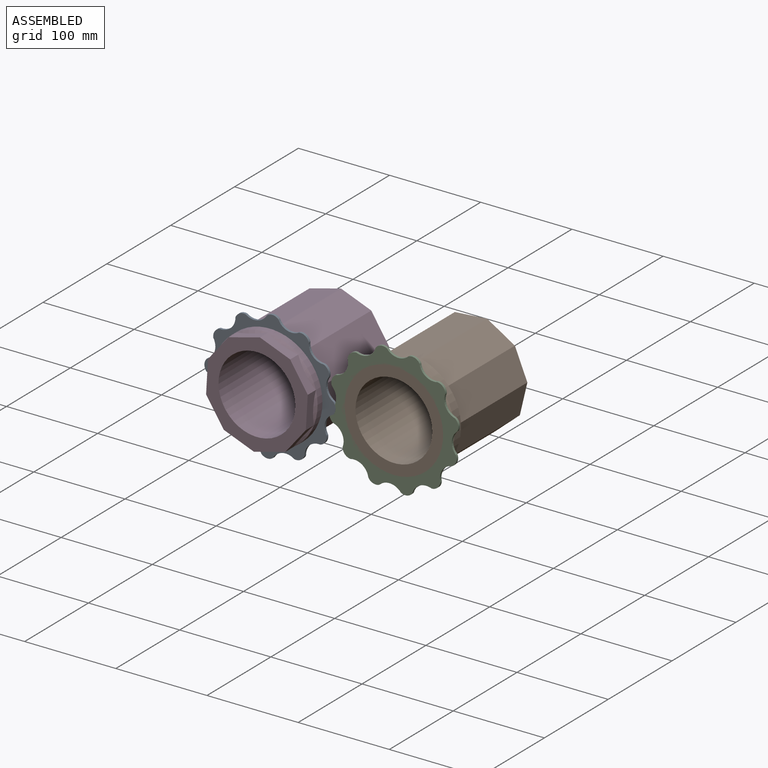
[diagram: assembled view]
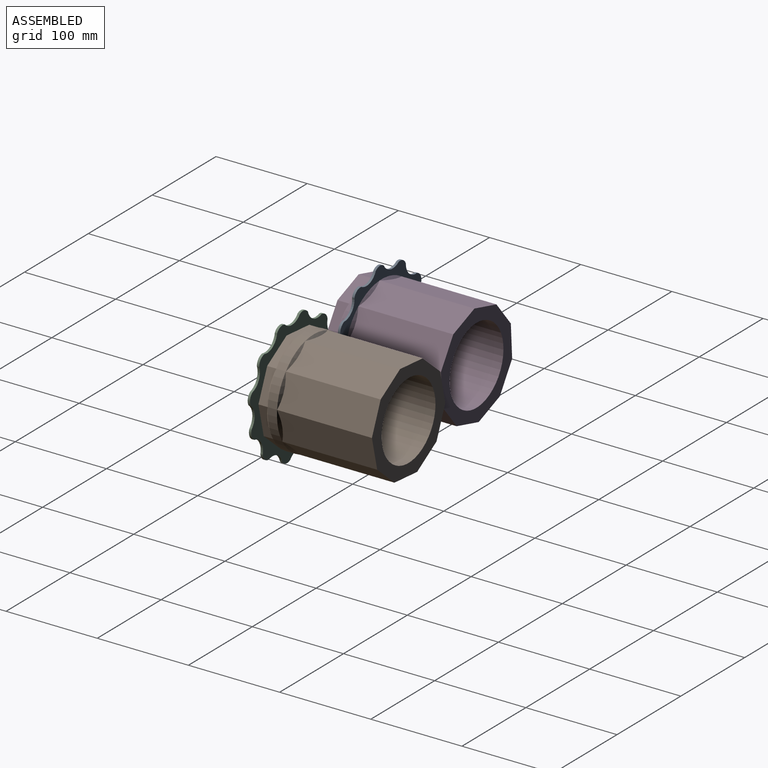
[diagram: assembled view, second angle]
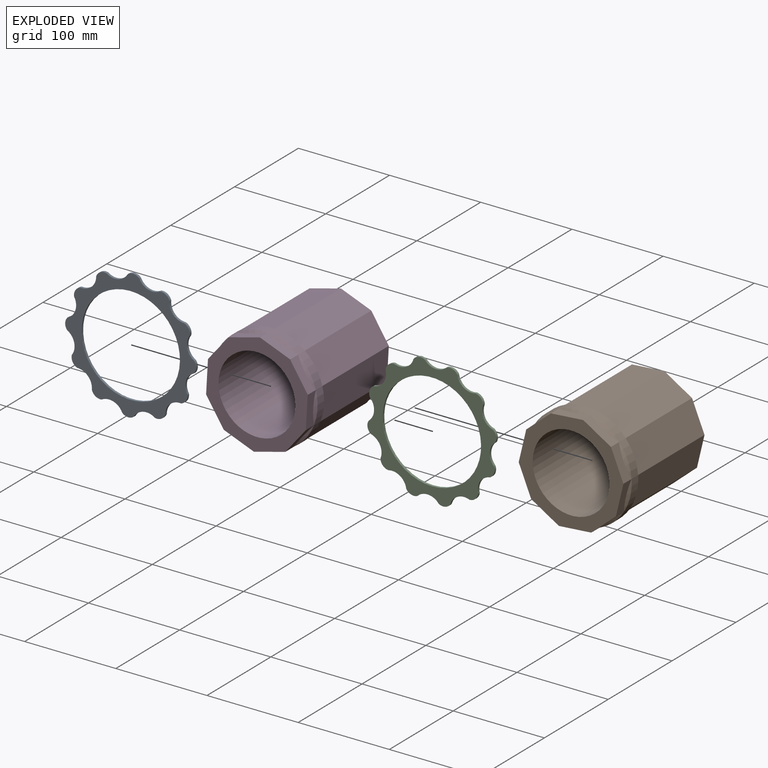
[diagram: exploded view]
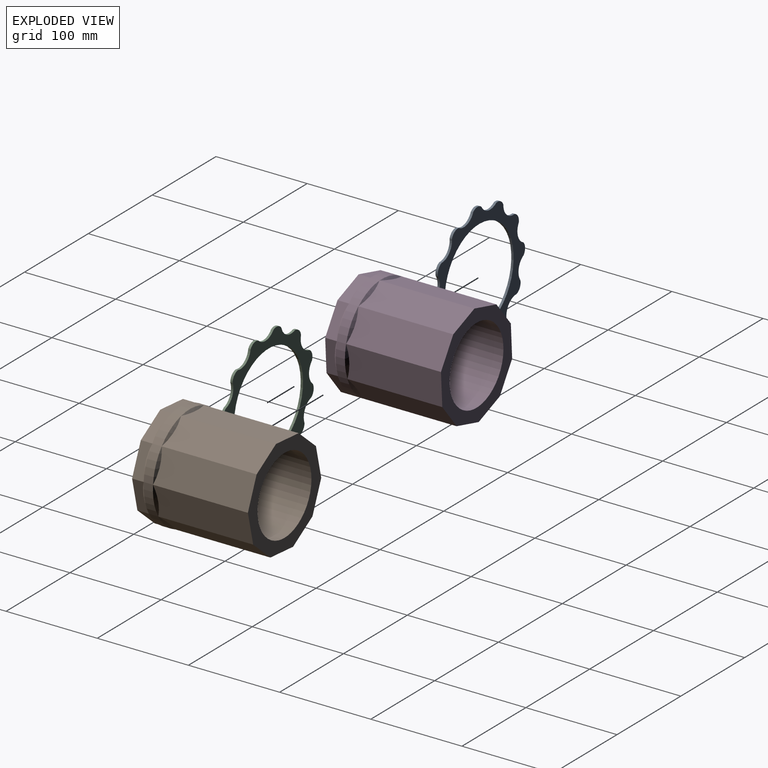
[diagram: exploded view, second angle]
ASSEMBLY  parts=4 mates=2
PART A: 27 faces, bbox 139.7x2.5x139.7 mm
  f0: cylinder r=9.59mm len=8.98mm, axis (0,1,0), area 35.3mm2, adj f1,f23,f25,f26
  f1: cylinder r=15.88mm len=20.56mm, axis (0,1,0), area 68.1mm2, adj f0,f2,f25,f26
  f2: cylinder r=9.59mm len=12.27mm, axis (0,1,0), area 35.3mm2, adj f1,f3,f25,f26
  f3: cylinder r=15.88mm len=23.74mm, axis (0,1,0), area 68.1mm2, adj f2,f4,f25,f26
  f4: cylinder r=9.59mm len=12.27mm, axis (0,1,0), area 35.3mm2, adj f3,f5,f25,f26
  f5: cylinder r=15.88mm len=20.56mm, axis (0,1,0), area 68.1mm2, adj f4,f6,f25,f26
  f6: cylinder r=9.59mm len=8.98mm, axis (0,1,0), area 35.3mm2, adj f5,f7,f25,f26
  f7: cylinder r=15.88mm len=20.56mm, axis (0,1,0), area 68.1mm2, adj f6,f8,f25,f26
  f8: cylinder r=9.59mm len=12.27mm, axis (0,1,0), area 35.3mm2, adj f7,f9,f25,f26
  f9: cylinder r=15.88mm len=23.74mm, axis (0,1,0), area 68.1mm2, adj f8,f10,f25,f26
  f10: cylinder r=9.59mm len=12.27mm, axis (0,1,0), area 35.3mm2, adj f9,f11,f25,f26
  f11: cylinder r=15.88mm len=20.56mm, axis (0,1,0), area 68.1mm2, adj f10,f12,f25,f26
  f12: cylinder r=9.59mm len=8.98mm, axis (0,1,0), area 35.3mm2, adj f11,f13,f25,f26
  f13: cylinder r=15.88mm len=20.56mm, axis (0,1,0), area 68.1mm2, adj f12,f14,f25,f26
  f14: cylinder r=9.59mm len=12.27mm, axis (0,1,0), area 35.3mm2, adj f13,f15,f25,f26
  f15: cylinder r=15.88mm len=23.74mm, axis (0,1,0), area 68.1mm2, adj f14,f16,f25,f26
  f16: cylinder r=9.59mm len=12.27mm, axis (0,1,0), area 35.3mm2, adj f15,f17,f25,f26
  f17: cylinder r=15.88mm len=20.56mm, axis (0,1,0), area 68.1mm2, adj f16,f18,f25,f26
  f18: cylinder r=9.59mm len=8.98mm, axis (0,1,0), area 35.3mm2, adj f17,f19,f25,f26
  f19: cylinder r=15.88mm len=20.56mm, axis (0,1,0), area 68.1mm2, adj f18,f20,f25,f26
  f20: cylinder r=9.59mm len=12.27mm, axis (0,1,0), area 35.3mm2, adj f19,f21,f25,f26
  f21: cylinder r=15.88mm len=23.74mm, axis (0,1,0), area 68.1mm2, adj f20,f22,f25,f26
  f22: cylinder r=9.59mm len=12.27mm, axis (0,1,0), area 35.3mm2, adj f21,f23,f25,f26
  f23: cylinder r=15.88mm len=20.56mm, axis (0,1,0), area 68.1mm2, adj f0,f22,f25,f26
  f24: cylinder r=53.98mm len=107.95mm, axis (0,1,0), area 861.4mm2, adj f25,f26
  f25: plane 139.68x139.68mm, normal (0,-1,0), area 5151.2mm2, adj f0,f1,f2,f3,f4,f5,f6,f7
  f26: plane 139.68x139.68mm, normal (0,1,0), area 5151.2mm2, adj f0,f1,f2,f3,f4,f5,f6,f7
PART B: 44 faces, bbox 115.2x115.2x127 mm
  f0: cone r=44.92mm half-angle=45deg, axis (0,0,-1), area 95.2mm2, adj f20,f31
  f1: cone r=44.92mm half-angle=45deg, axis (0,0,-1), area 95.2mm2, adj f20,f32
  f2: cone r=44.92mm half-angle=45deg, axis (0,0,-1), area 95.2mm2, adj f20,f33
  f3: cone r=44.92mm half-angle=45deg, axis (0,0,-1), area 95.2mm2, adj f20,f34
  f4: cone r=44.92mm half-angle=45deg, axis (0,0,-1), area 95.2mm2, adj f20,f35
  f5: cone r=44.92mm half-angle=45deg, axis (0,0,-1), area 95.2mm2, adj f20,f36
  f6: cone r=44.92mm half-angle=45deg, axis (0,0,-1), area 95.2mm2, adj f20,f37
  f7: cone r=44.92mm half-angle=45deg, axis (0,0,-1), area 95.2mm2, adj f20,f38
  f8: cone r=44.92mm half-angle=45deg, axis (0,0,-1), area 95.2mm2, adj f20,f39
  f9: cone r=44.92mm half-angle=45deg, axis (0,0,-1), area 95.2mm2, adj f20,f40
  f10: cone r=57.62mm half-angle=45deg, axis (0,0,1), area 95.2mm2, adj f20,f30
  f11: cone r=57.62mm half-angle=45deg, axis (0,0,1), area 95.2mm2, adj f20,f29
  f12: cone r=57.62mm half-angle=45deg, axis (0,0,1), area 95.2mm2, adj f20,f28
  f13: cone r=57.62mm half-angle=45deg, axis (0,0,1), area 95.2mm2, adj f20,f27
  f14: cone r=57.62mm half-angle=45deg, axis (0,0,1), area 95.2mm2, adj f20,f26
  f15: cone r=57.62mm half-angle=45deg, axis (0,0,1), area 95.2mm2, adj f20,f25
  f16: cone r=57.62mm half-angle=45deg, axis (0,0,1), area 95.2mm2, adj f20,f24
  f17: cone r=57.62mm half-angle=45deg, axis (0,0,1), area 95.2mm2, adj f20,f23
  f18: cone r=57.62mm half-angle=45deg, axis (0,0,1), area 95.2mm2, adj f20,f22
  f19: cone r=57.62mm half-angle=45deg, axis (0,0,1), area 95.2mm2, adj f20,f21
  f20: cylinder r=57.62mm len=115.24mm, axis (0,0,-1), area 3708.9mm2, adj f0,f1,f2,f3,f4,f5,f6,f7
  f21: plane 26.83x23.41mm, normal (-0.66,-0.75,0), area 385.7mm2, adj f19,f22,f30,f42
  f22: plane 34.71x12.7mm, normal (-0.97,-0.22,0), area 385.7mm2, adj f18,f21,f23,f42
  f23: plane 32.76x13.98mm, normal (-0.92,0.39,0), area 385.7mm2, adj f17,f22,f24,f42
  f24: plane 30.56x18.28mm, normal (-0.51,0.86,0), area 385.7mm2, adj f16,f23,f25,f42
  f25: plane 35.47x12.7mm, normal (0.09,1,0), area 385.7mm2, adj f15,f24,f26,f42
  f26: plane 26.83x23.41mm, normal (0.66,0.75,0), area 385.7mm2, adj f14,f25,f27,f42
  f27: plane 34.71x12.7mm, normal (0.97,0.22,0), area 385.7mm2, adj f13,f26,f28,f42
  f28: plane 32.76x13.98mm, normal (0.92,-0.39,0), area 385.7mm2, adj f12,f27,f29,f42
  f29: plane 30.56x18.28mm, normal (0.51,-0.86,0), area 385.7mm2, adj f11,f28,f30,f42
  f30: plane 35.47x12.7mm, normal (-0.09,-1,0), area 385.7mm2, adj f10,f21,f29,f42
  f31: plane 104.06x35.47mm, normal (-0.09,-1,0), area 3639mm2, adj f0,f32,f40,f41
  f32: plane 104.06x30.56mm, normal (0.51,-0.86,0), area 3639mm2, adj f1,f31,f33,f41
  f33: plane 104.06x32.76mm, normal (0.92,-0.39,0), area 3639mm2, adj f2,f32,f34,f41
  f34: plane 104.06x34.71mm, normal (0.97,0.22,0), area 3639mm2, adj f3,f33,f35,f41
  f35: plane 104.06x26.83mm, normal (0.66,0.75,0), area 3639mm2, adj f4,f34,f36,f41
  f36: plane 104.06x35.47mm, normal (0.09,1,0), area 3639mm2, adj f5,f35,f37,f41
  f37: plane 104.06x30.56mm, normal (-0.51,0.86,0), area 3639mm2, adj f6,f36,f38,f41
  f38: plane 104.06x32.76mm, normal (-0.92,0.39,0), area 3639mm2, adj f7,f37,f39,f41
  f39: plane 104.06x34.71mm, normal (-0.97,-0.22,0), area 3639mm2, adj f8,f38,f40,f41
  f40: plane 104.06x26.83mm, normal (-0.66,-0.75,0), area 3639mm2, adj f9,f31,f39,f41
  f41: plane 114.79x112.34mm, normal (0,0,1), area 4178.5mm2, adj f31,f32,f33,f34,f35,f36,f37,f38
  f42: plane 114.79x112.34mm, normal (0,0,-1), area 4178.5mm2, adj f21,f22,f23,f24,f25,f26,f27,f28
  f43: cylinder r=42.14mm len=127mm, axis (0,0,-1), area 33628.3mm2, adj f41,f42
PART C: same geometry as A
PART D: same geometry as B
PLACE A rot(axis=(0,1,0),137.4deg) t=(-135.27,37.18,-6.95)mm
PLACE B rot(axis=(-1,0,0),90deg) t=(0.58,34.82,-4.25)mm fixed
PLACE C rot(axis=(0.29,0,0.96),180deg) t=(0.58,34.82,-4.25)mm
PLACE D rot(axis=(-0.99,-0.08,-0.08),90.4deg) t=(-135.27,14.24,-6.95)mm fixed
MATE revolute A.f24 <-> D.f0  axis (0,1,0) through (-135.27,37.18,-6.95)mm
MATE revolute C.f24 <-> B.f43  axis (0,-1,0) through (0.58,34.82,-4.25)mm
